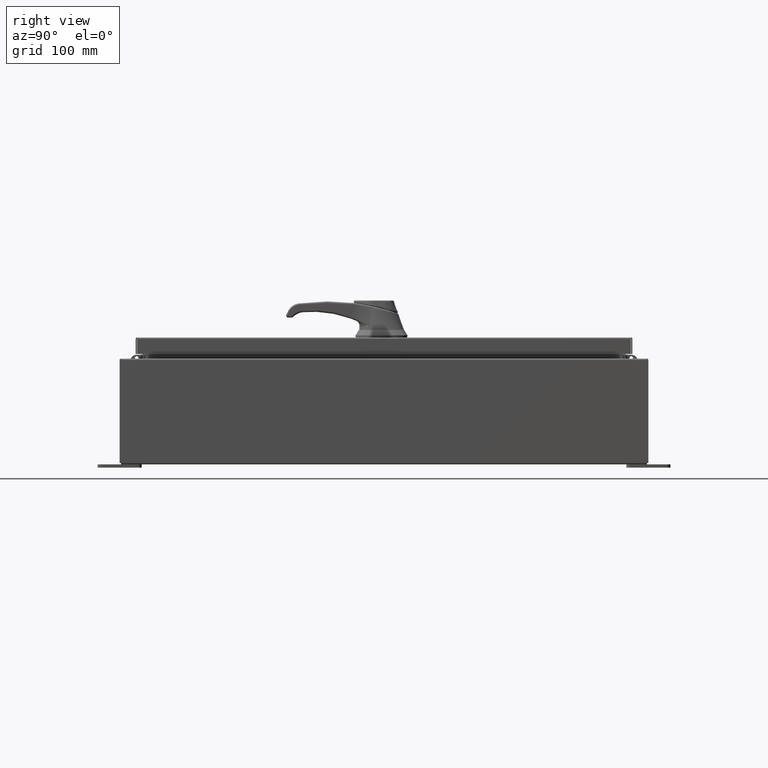
[diagram: clean part render]
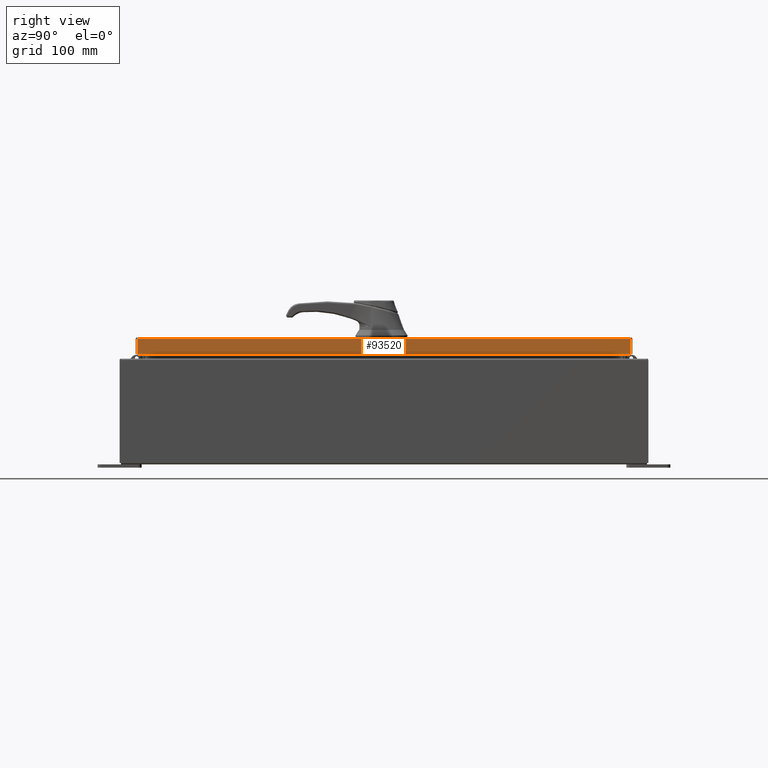
[diagram: same view with one face highlighted and labeled with its STEP entity id]
A machine part, right view. The second image highlights one B-rep face of the part: STEP entity #93520.
In plain terms, the highlighted planar face has unit normal (1, 0, 0).
Its self-contained STEP definition (entity closure, byte-faithful):
#2929 = DIRECTION ( 'NONE',  ( 0.0000000000000000000, -1.000000000000000000, 0.0000000000000000000 ) ) ;
#3513 = EDGE_LOOP ( 'NONE', ( #115846, #115140, #83824, #100884 ) ) ;
#19220 = LINE ( 'NONE', #57781, #67994 ) ;
#23107 = LINE ( 'NONE', #96831, #117558 ) ;
#23779 = CARTESIAN_POINT ( 'NONE',  ( 11.07799999999999900, 0.0000000000000000000, -0.08770000000000008300 ) ) ;
#24976 = LINE ( 'NONE', #81521, #73722 ) ;
#26608 = DIRECTION ( 'NONE',  ( -2.532419924601866100E-015, -6.982962677686265900E-015, 1.000000000000000000 ) ) ;
#27348 = CARTESIAN_POINT ( 'NONE',  ( 11.07799999999999900, 14.00515786437626500, -0.08770000000000008300 ) ) ;
#31512 = VERTEX_POINT ( 'NONE', #27348 ) ;
#37400 = LINE ( 'NONE', #23779, #83273 ) ;
#42051 = DIRECTION ( 'NONE',  ( -2.532419924601866100E-015, -6.982962677686265900E-015, 1.000000000000000000 ) ) ;
#44020 = CARTESIAN_POINT ( 'NONE',  ( 11.07799999999999900, 0.0000000000000000000, 2.831496158075105700E-014 ) ) ;
#44389 = CARTESIAN_POINT ( 'NONE',  ( 11.07800000000000300, -14.00515786437626200, -0.9376999999999997600 ) ) ;
#49878 = CARTESIAN_POINT ( 'NONE',  ( 11.07800000000000300, 14.00515786437627200, -0.9376999999999997600 ) ) ;
#53186 = DIRECTION ( 'NONE',  ( 2.532419924601866100E-015, 0.0000000000000000000, -1.000000000000000000 ) ) ;
#57781 = CARTESIAN_POINT ( 'NONE',  ( 11.07800000000000300, -14.09399999999999900, -0.9376999999999997600 ) ) ;
#58903 = FACE_OUTER_BOUND ( 'NONE', #3513, .T. ) ;
#59181 = VERTEX_POINT ( 'NONE', #44389 ) ;
#62016 = PLANE ( 'NONE',  #94365 ) ;
#64193 = EDGE_CURVE ( 'NONE', #31512, #73623, #37400, .T. ) ;
#67994 = VECTOR ( 'NONE', #2929, 39.37007874015748100 ) ;
#73623 = VERTEX_POINT ( 'NONE', #118677 ) ;
#73722 = VECTOR ( 'NONE', #26608, 39.37007874015748100 ) ;
#78727 = DIRECTION ( 'NONE',  ( 0.0000000000000000000, -1.000000000000000000, 0.0000000000000000000 ) ) ;
#81521 = CARTESIAN_POINT ( 'NONE',  ( 11.07799999999999900, 14.00515786437626900, 1.261124562427948200E-013 ) ) ;
#83273 = VECTOR ( 'NONE', #78727, 39.37007874015748100 ) ;
#83824 = ORIENTED_EDGE ( 'NONE', *, *, #89575, .T. ) ;
#89575 = EDGE_CURVE ( 'NONE', #114458, #31512, #24976, .T. ) ;
#89723 = EDGE_CURVE ( 'NONE', #114458, #59181, #19220, .T. ) ;
#93520 = ADVANCED_FACE ( 'NONE', ( #58903 ), #62016, .T. ) ;
#94365 = AXIS2_PLACEMENT_3D ( 'NONE', #44020, #107973, #53186 ) ;
#96831 = CARTESIAN_POINT ( 'NONE',  ( 11.07799999999999900, -14.00515786437626900, -0.07469999999999980800 ) ) ;
#100884 = ORIENTED_EDGE ( 'NONE', *, *, #64193, .T. ) ;
#107973 = DIRECTION ( 'NONE',  ( 1.000000000000000000, 0.0000000000000000000, 2.532419924601866100E-015 ) ) ;
#114458 = VERTEX_POINT ( 'NONE', #49878 ) ;
#115140 = ORIENTED_EDGE ( 'NONE', *, *, #89723, .F. ) ;
#115788 = EDGE_CURVE ( 'NONE', #59181, #73623, #23107, .T. ) ;
#115846 = ORIENTED_EDGE ( 'NONE', *, *, #115788, .F. ) ;
#117558 = VECTOR ( 'NONE', #42051, 39.37007874015748100 ) ;
#118677 = CARTESIAN_POINT ( 'NONE',  ( 11.07799999999999900, -14.00515786437626900, -0.08770000000000008300 ) ) ;